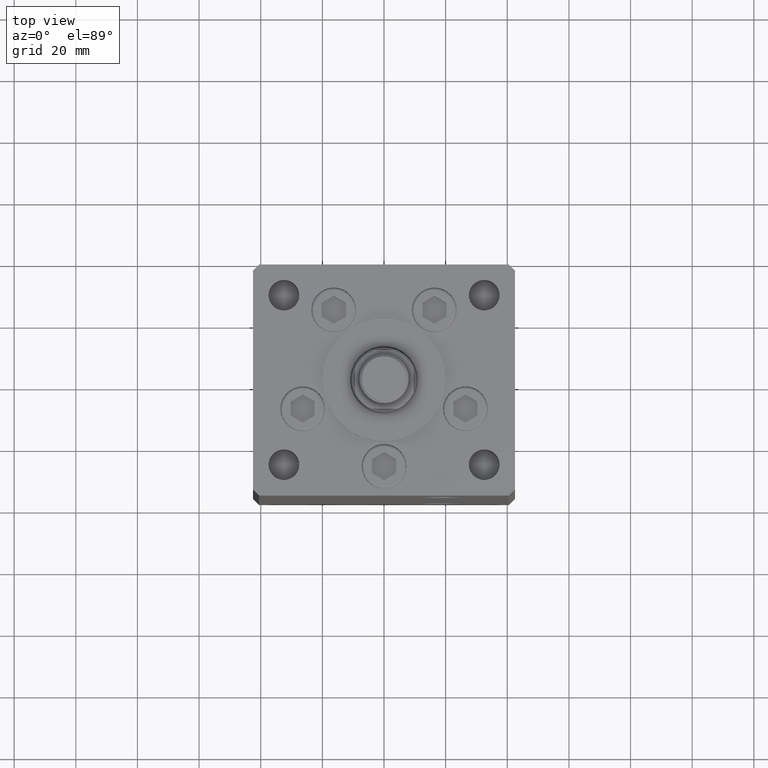
[diagram: clean part render]
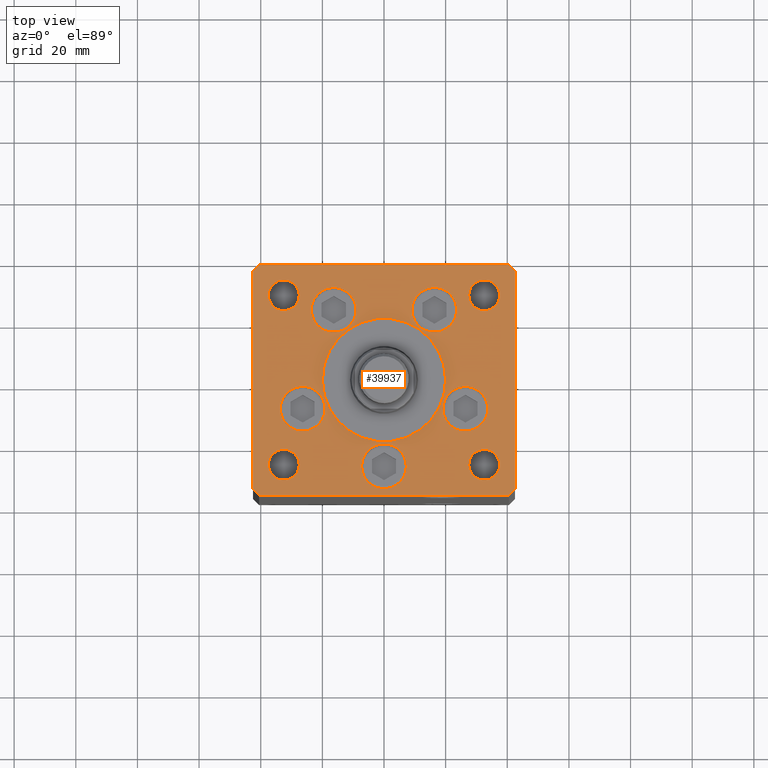
[diagram: same view with one face highlighted and labeled with its STEP entity id]
A machine part, top view. The second image highlights one B-rep face of the part: STEP entity #39937.
In plain terms, the highlighted planar face has unit normal (0, 0, 1).
Its self-contained STEP definition (entity closure, byte-faithful):
#381 = CARTESIAN_POINT ( 'NONE',  ( 37.50000000000000000, 27.49999999999999645, 0.000000000000000000 ) ) ;
#1304 = DIRECTION ( 'NONE',  ( 1.000000000000000000, 0.000000000000000000, 0.000000000000000000 ) ) ;
#1337 = ORIENTED_EDGE ( 'NONE', *, *, #44912, .F. ) ;
#1575 = VERTEX_POINT ( 'NONE', #16750 ) ;
#1976 = EDGE_CURVE ( 'NONE', #31395, #40516, #36738, .T. ) ;
#2077 = CARTESIAN_POINT ( 'NONE',  ( 26.39865316429777664, -9.333333333333330373, 0.000000000000000000 ) ) ;
#2085 = EDGE_CURVE ( 'NONE', #12392, #33959, #27474, .T. ) ;
#2093 = ORIENTED_EDGE ( 'NONE', *, *, #33495, .T. ) ;
#2217 = VERTEX_POINT ( 'NONE', #16357 ) ;
#2313 = CIRCLE ( 'NONE', #20102, 20.00000000000000000 ) ;
#2337 = CARTESIAN_POINT ( 'NONE',  ( -37.50000000000000711, 27.50000000000000711, 0.000000000000000000 ) ) ;
#2431 = DIRECTION ( 'NONE',  ( 1.000000000000000000, 0.000000000000000000, 0.000000000000000000 ) ) ;
#2440 = AXIS2_PLACEMENT_3D ( 'NONE', #50064, #18259, #37887 ) ;
#2483 = EDGE_LOOP ( 'NONE', ( #18332, #41672 ) ) ;
#2903 = EDGE_CURVE ( 'NONE', #48194, #10836, #51166, .T. ) ;
#3240 = DIRECTION ( 'NONE',  ( -0.000000000000000000, -0.000000000000000000, -1.000000000000000000 ) ) ;
#3314 = ORIENTED_EDGE ( 'NONE', *, *, #50832, .F. ) ;
#3653 = ORIENTED_EDGE ( 'NONE', *, *, #19638, .F. ) ;
#3935 = CARTESIAN_POINT ( 'NONE',  ( 42.50000000000000711, -35.49999999999992895, 0.000000000000000000 ) ) ;
#4215 = VECTOR ( 'NONE', #39763, 1000.000000000000000 ) ;
#4217 = DIRECTION ( 'NONE',  ( 0.000000000000000000, 0.000000000000000000, 1.000000000000000000 ) ) ;
#4440 = CARTESIAN_POINT ( 'NONE',  ( 16.32291334290544071, 22.74999999999999289, 0.000000000000000000 ) ) ;
#4622 = ORIENTED_EDGE ( 'NONE', *, *, #45776, .T. ) ;
#4624 = CARTESIAN_POINT ( 'NONE',  ( -33.64865316429777664, -9.333333333333328596, 0.000000000000000000 ) ) ;
#4718 = CARTESIAN_POINT ( 'NONE',  ( -16.32291334290544071, 22.74999999999999289, 0.000000000000000000 ) ) ;
#4987 = CARTESIAN_POINT ( 'NONE',  ( 32.50000000000000000, -27.50000000000000355, 0.000000000000000000 ) ) ;
#5048 = CARTESIAN_POINT ( 'NONE',  ( -32.50000000000000000, -27.50000000000000355, 0.000000000000000000 ) ) ;
#5152 = VECTOR ( 'NONE', #15227, 1000.000000000000000 ) ;
#5447 = CARTESIAN_POINT ( 'NONE',  ( 20.00000000000000000, -4.489600305612522259E-15, 0.000000000000000000 ) ) ;
#5514 = FACE_BOUND ( 'NONE', #25827, .T. ) ;
#5564 = DIRECTION ( 'NONE',  ( 1.000000000000000000, 0.000000000000000000, 0.000000000000000000 ) ) ;
#5769 = CARTESIAN_POINT ( 'NONE',  ( 0.000000000000000000, 0.000000000000000000, 0.000000000000000000 ) ) ;
#5781 = DIRECTION ( 'NONE',  ( 0.000000000000000000, 0.000000000000000000, 1.000000000000000000 ) ) ;
#5793 = VERTEX_POINT ( 'NONE', #23268 ) ;
#6393 = VECTOR ( 'NONE', #27959, 1000.000000000000000 ) ;
#6528 = DIRECTION ( 'NONE',  ( 1.000000000000000000, 0.000000000000000000, 0.000000000000000000 ) ) ;
#6548 = CARTESIAN_POINT ( 'NONE',  ( 0.000000000000000000, -6.938893903907228378E-15, 0.000000000000000000 ) ) ;
#7034 = ORIENTED_EDGE ( 'NONE', *, *, #13913, .F. ) ;
#7095 = AXIS2_PLACEMENT_3D ( 'NONE', #4440, #33094, #12677 ) ;
#7580 = CARTESIAN_POINT ( 'NONE',  ( -23.57291334290544071, 22.74999999999999289, 0.000000000000000000 ) ) ;
#7836 = EDGE_CURVE ( 'NONE', #40516, #31395, #52143, .T. ) ;
#7855 = ORIENTED_EDGE ( 'NONE', *, *, #1976, .F. ) ;
#8450 = CARTESIAN_POINT ( 'NONE',  ( -32.50000000000000000, 27.50000000000000711, 0.000000000000000000 ) ) ;
#8460 = CARTESIAN_POINT ( 'NONE',  ( 32.50000000000000000, 27.49999999999999645, 0.000000000000000000 ) ) ;
#8485 = CIRCLE ( 'NONE', #30491, 7.249999999999999112 ) ;
#8769 = DIRECTION ( 'NONE',  ( 0.000000000000000000, 0.000000000000000000, 1.000000000000000000 ) ) ;
#8934 = AXIS2_PLACEMENT_3D ( 'NONE', #31880, #3240, #15438 ) ;
#8993 = CARTESIAN_POINT ( 'NONE',  ( -42.50000000000000000, -35.50000000000004263, 0.000000000000000000 ) ) ;
#9289 = CIRCLE ( 'NONE', #38091, 7.249999999999999112 ) ;
#9947 = LINE ( 'NONE', #13672, #32569 ) ;
#9963 = VERTEX_POINT ( 'NONE', #19157 ) ;
#9976 = CARTESIAN_POINT ( 'NONE',  ( 23.57291334290544071, 22.74999999999999289, 0.000000000000000000 ) ) ;
#10006 = DIRECTION ( 'NONE',  ( 1.000000000000000000, 0.000000000000000000, 0.000000000000000000 ) ) ;
#10286 = DIRECTION ( 'NONE',  ( 0.000000000000000000, 0.000000000000000000, 1.000000000000000000 ) ) ;
#10638 = ORIENTED_EDGE ( 'NONE', *, *, #38736, .F. ) ;
#10836 = VERTEX_POINT ( 'NONE', #43552 ) ;
#11101 = VERTEX_POINT ( 'NONE', #2337 ) ;
#11159 = VERTEX_POINT ( 'NONE', #36443 ) ;
#11814 = EDGE_CURVE ( 'NONE', #20076, #44933, #33787, .T. ) ;
#12001 = CARTESIAN_POINT ( 'NONE',  ( 32.50000000000000000, 27.49999999999999645, 0.000000000000000000 ) ) ;
#12238 = DIRECTION ( 'NONE',  ( 1.000000000000000000, 0.000000000000000000, 0.000000000000000000 ) ) ;
#12344 = CARTESIAN_POINT ( 'NONE',  ( -42.50000000000000711, 35.50000000000000000, 0.000000000000000000 ) ) ;
#12392 = VERTEX_POINT ( 'NONE', #4624 ) ;
#12394 = CARTESIAN_POINT ( 'NONE',  ( -19.14865316429777664, -9.333333333333330373, 0.000000000000000000 ) ) ;
#12633 = ORIENTED_EDGE ( 'NONE', *, *, #12897, .T. ) ;
#12658 = LINE ( 'NONE', #44738, #49062 ) ;
#12663 = EDGE_LOOP ( 'NONE', ( #20349, #19562 ) ) ;
#12677 = DIRECTION ( 'NONE',  ( 1.000000000000000000, 0.000000000000000000, 0.000000000000000000 ) ) ;
#12897 = EDGE_CURVE ( 'NONE', #15858, #21236, #12658, .T. ) ;
#12951 = FACE_OUTER_BOUND ( 'NONE', #40431, .T. ) ;
#13300 = CIRCLE ( 'NONE', #20067, 7.249999999999999112 ) ;
#13672 = CARTESIAN_POINT ( 'NONE',  ( 42.50000000000000711, -35.49999999999992895, 0.000000000000000000 ) ) ;
#13879 = AXIS2_PLACEMENT_3D ( 'NONE', #8460, #4217, #20397 ) ;
#13913 = EDGE_CURVE ( 'NONE', #44933, #20076, #30452, .T. ) ;
#14021 = EDGE_CURVE ( 'NONE', #1575, #5793, #38972, .T. ) ;
#14148 = EDGE_CURVE ( 'NONE', #9963, #20753, #33038, .T. ) ;
#14240 = EDGE_LOOP ( 'NONE', ( #3314, #10638 ) ) ;
#14573 = DIRECTION ( 'NONE',  ( -1.000000000000000000, 0.000000000000000000, 0.000000000000000000 ) ) ;
#14689 = AXIS2_PLACEMENT_3D ( 'NONE', #22704, #51075, #6528 ) ;
#15050 = EDGE_CURVE ( 'NONE', #52111, #25835, #9289, .T. ) ;
#15227 = DIRECTION ( 'NONE',  ( -0.7071067811865536790, -0.7071067811865414665, 0.000000000000000000 ) ) ;
#15314 = DIRECTION ( 'NONE',  ( 0.000000000000000000, 0.000000000000000000, 1.000000000000000000 ) ) ;
#15356 = CARTESIAN_POINT ( 'NONE',  ( 7.250000000000000000, -28.00000000000000000, 0.000000000000000000 ) ) ;
#15438 = DIRECTION ( 'NONE',  ( -1.000000000000000000, 0.000000000000000000, 0.000000000000000000 ) ) ;
#15858 = VERTEX_POINT ( 'NONE', #44595 ) ;
#16083 = CARTESIAN_POINT ( 'NONE',  ( -27.50000000000000000, 27.50000000000000711, 0.000000000000000000 ) ) ;
#16357 = CARTESIAN_POINT ( 'NONE',  ( 9.072913342905442491, 22.74999999999999289, 0.000000000000000000 ) ) ;
#16673 = CARTESIAN_POINT ( 'NONE',  ( -40.50000000000000000, 37.49999999999997158, 0.000000000000000000 ) ) ;
#16750 = CARTESIAN_POINT ( 'NONE',  ( -40.50000000000000711, -37.50000000000003553, 0.000000000000000000 ) ) ;
#16975 = CARTESIAN_POINT ( 'NONE',  ( -42.50000000000000000, -35.50000000000004263, 0.000000000000000000 ) ) ;
#17090 = EDGE_CURVE ( 'NONE', #33597, #1575, #29435, .T. ) ;
#17436 = ORIENTED_EDGE ( 'NONE', *, *, #14021, .T. ) ;
#17504 = DIRECTION ( 'NONE',  ( 0.7071067811865487940, -0.7071067811865463515, 0.000000000000000000 ) ) ;
#17556 = EDGE_CURVE ( 'NONE', #11159, #40256, #18566, .T. ) ;
#17713 = FACE_BOUND ( 'NONE', #26474, .T. ) ;
#18028 = CARTESIAN_POINT ( 'NONE',  ( 0.000000000000000000, -28.00000000000000000, 0.000000000000000000 ) ) ;
#18092 = EDGE_CURVE ( 'NONE', #21236, #36258, #33744, .T. ) ;
#18259 = DIRECTION ( 'NONE',  ( 0.000000000000000000, 0.000000000000000000, 1.000000000000000000 ) ) ;
#18332 = ORIENTED_EDGE ( 'NONE', *, *, #2903, .F. ) ;
#18566 = CIRCLE ( 'NONE', #48193, 20.00000000000000000 ) ;
#18727 = DIRECTION ( 'NONE',  ( 0.000000000000000000, 0.000000000000000000, 1.000000000000000000 ) ) ;
#18979 = CIRCLE ( 'NONE', #34234, 5.000000000000004441 ) ;
#18991 = AXIS2_PLACEMENT_3D ( 'NONE', #33652, #5781, #1304 ) ;
#19081 = CARTESIAN_POINT ( 'NONE',  ( 40.50000000000000711, 37.50000000000000711, 0.000000000000000000 ) ) ;
#19157 = CARTESIAN_POINT ( 'NONE',  ( 27.50000000000000355, -27.50000000000000355, 0.000000000000000000 ) ) ;
#19235 = VERTEX_POINT ( 'NONE', #43272 ) ;
#19359 = CARTESIAN_POINT ( 'NONE',  ( -32.50000000000000000, 27.50000000000000711, 0.000000000000000000 ) ) ;
#19562 = ORIENTED_EDGE ( 'NONE', *, *, #14148, .T. ) ;
#19638 = EDGE_CURVE ( 'NONE', #2217, #20682, #8485, .T. ) ;
#19667 = DIRECTION ( 'NONE',  ( 0.000000000000000000, 0.000000000000000000, 1.000000000000000000 ) ) ;
#19720 = CARTESIAN_POINT ( 'NONE',  ( -40.50000000000000000, 37.49999999999997158, 0.000000000000000000 ) ) ;
#19772 = CIRCLE ( 'NONE', #51943, 7.250000000000000000 ) ;
#20067 = AXIS2_PLACEMENT_3D ( 'NONE', #4718, #25144, #41313 ) ;
#20076 = VERTEX_POINT ( 'NONE', #50139 ) ;
#20082 = ORIENTED_EDGE ( 'NONE', *, *, #44172, .F. ) ;
#20102 = AXIS2_PLACEMENT_3D ( 'NONE', #6548, #26442, #22723 ) ;
#20349 = ORIENTED_EDGE ( 'NONE', *, *, #39529, .T. ) ;
#20385 = DIRECTION ( 'NONE',  ( -0.000000000000000000, -0.000000000000000000, -1.000000000000000000 ) ) ;
#20397 = DIRECTION ( 'NONE',  ( 1.000000000000000000, 0.000000000000000000, 0.000000000000000000 ) ) ;
#20482 = CIRCLE ( 'NONE', #45051, 5.000000000000004441 ) ;
#20682 = VERTEX_POINT ( 'NONE', #9976 ) ;
#20692 = AXIS2_PLACEMENT_3D ( 'NONE', #2077, #10286, #46874 ) ;
#20753 = VERTEX_POINT ( 'NONE', #22431 ) ;
#20933 = ORIENTED_EDGE ( 'NONE', *, *, #7836, .F. ) ;
#21173 = DIRECTION ( 'NONE',  ( -0.000000000000000000, -0.000000000000000000, -1.000000000000000000 ) ) ;
#21236 = VERTEX_POINT ( 'NONE', #25974 ) ;
#21324 = ORIENTED_EDGE ( 'NONE', *, *, #21837, .T. ) ;
#21837 = EDGE_CURVE ( 'NONE', #36258, #24940, #27155, .T. ) ;
#21849 = ORIENTED_EDGE ( 'NONE', *, *, #11814, .F. ) ;
#21941 = CARTESIAN_POINT ( 'NONE',  ( -27.50000000000000000, -27.50000000000000355, 0.000000000000000000 ) ) ;
#21942 = FACE_BOUND ( 'NONE', #12663, .T. ) ;
#22431 = CARTESIAN_POINT ( 'NONE',  ( 37.50000000000000000, -27.50000000000000355, 0.000000000000000000 ) ) ;
#22704 = CARTESIAN_POINT ( 'NONE',  ( 26.39865316429777664, -9.333333333333330373, 0.000000000000000000 ) ) ;
#22723 = DIRECTION ( 'NONE',  ( 1.000000000000000000, 0.000000000000000000, 0.000000000000000000 ) ) ;
#23268 = CARTESIAN_POINT ( 'NONE',  ( 40.50000000000001421, -37.49999999999992184, 0.000000000000000000 ) ) ;
#23464 = CARTESIAN_POINT ( 'NONE',  ( -42.50000000000000711, 35.50000000000000000, 0.000000000000000000 ) ) ;
#23677 = DIRECTION ( 'NONE',  ( 0.000000000000000000, 0.000000000000000000, 1.000000000000000000 ) ) ;
#24134 = DIRECTION ( 'NONE',  ( 0.7071067811865474617, 0.7071067811865474617, 0.000000000000000000 ) ) ;
#24604 = EDGE_CURVE ( 'NONE', #33959, #12392, #26385, .T. ) ;
#24633 = DIRECTION ( 'NONE',  ( -1.000000000000000000, 0.000000000000000000, 0.000000000000000000 ) ) ;
#24940 = VERTEX_POINT ( 'NONE', #12344 ) ;
#25144 = DIRECTION ( 'NONE',  ( 0.000000000000000000, 0.000000000000000000, 1.000000000000000000 ) ) ;
#25754 = ORIENTED_EDGE ( 'NONE', *, *, #18092, .T. ) ;
#25755 = CIRCLE ( 'NONE', #7095, 7.249999999999999112 ) ;
#25827 = EDGE_LOOP ( 'NONE', ( #30337, #4622 ) ) ;
#25835 = VERTEX_POINT ( 'NONE', #27814 ) ;
#25918 = AXIS2_PLACEMENT_3D ( 'NONE', #12001, #23677, #27396 ) ;
#25974 = CARTESIAN_POINT ( 'NONE',  ( 40.50000000000000711, 37.50000000000000711, 0.000000000000000000 ) ) ;
#26385 = CIRCLE ( 'NONE', #51824, 7.249999999999999112 ) ;
#26442 = DIRECTION ( 'NONE',  ( 0.000000000000000000, 0.000000000000000000, 1.000000000000000000 ) ) ;
#26474 = EDGE_LOOP ( 'NONE', ( #20933, #7855 ) ) ;
#26653 = CIRCLE ( 'NONE', #34301, 7.250000000000000000 ) ;
#27155 = LINE ( 'NONE', #19720, #5152 ) ;
#27396 = DIRECTION ( 'NONE',  ( 1.000000000000000000, 0.000000000000000000, 0.000000000000000000 ) ) ;
#27474 = CIRCLE ( 'NONE', #18991, 7.249999999999999112 ) ;
#27814 = CARTESIAN_POINT ( 'NONE',  ( -9.072913342905442491, 22.74999999999999289, 0.000000000000000000 ) ) ;
#27959 = DIRECTION ( 'NONE',  ( 9.773090005503134168E-17, -1.000000000000000000, 0.000000000000000000 ) ) ;
#28785 = AXIS2_PLACEMENT_3D ( 'NONE', #5048, #8769, #12238 ) ;
#29435 = LINE ( 'NONE', #16975, #51563 ) ;
#29903 = FACE_BOUND ( 'NONE', #2483, .T. ) ;
#30172 = FACE_BOUND ( 'NONE', #31773, .T. ) ;
#30337 = ORIENTED_EDGE ( 'NONE', *, *, #31344, .T. ) ;
#30452 = CIRCLE ( 'NONE', #28785, 5.000000000000000888 ) ;
#30491 = AXIS2_PLACEMENT_3D ( 'NONE', #36581, #41606, #41094 ) ;
#30586 = ORIENTED_EDGE ( 'NONE', *, *, #51891, .F. ) ;
#31321 = ORIENTED_EDGE ( 'NONE', *, *, #17556, .F. ) ;
#31343 = CARTESIAN_POINT ( 'NONE',  ( 0.000000000000000000, -28.00000000000000000, 0.000000000000000000 ) ) ;
#31344 = EDGE_CURVE ( 'NONE', #40126, #11101, #18979, .T. ) ;
#31395 = VERTEX_POINT ( 'NONE', #51950 ) ;
#31548 = CARTESIAN_POINT ( 'NONE',  ( -40.50000000000000711, -37.50000000000003553, 0.000000000000000000 ) ) ;
#31773 = EDGE_LOOP ( 'NONE', ( #30586, #3653 ) ) ;
#31840 = CARTESIAN_POINT ( 'NONE',  ( 40.50000000000001421, -37.49999999999992184, 0.000000000000000000 ) ) ;
#31880 = CARTESIAN_POINT ( 'NONE',  ( 32.50000000000000000, -27.50000000000000355, 0.000000000000000000 ) ) ;
#32365 = ORIENTED_EDGE ( 'NONE', *, *, #17090, .T. ) ;
#32569 = VECTOR ( 'NONE', #33583, 1000.000000000000000 ) ;
#33038 = CIRCLE ( 'NONE', #41472, 4.999999999999997335 ) ;
#33094 = DIRECTION ( 'NONE',  ( 0.000000000000000000, 0.000000000000000000, 1.000000000000000000 ) ) ;
#33495 = EDGE_CURVE ( 'NONE', #5793, #44200, #36324, .T. ) ;
#33583 = DIRECTION ( 'NONE',  ( 9.773090005503145261E-17, 1.000000000000000000, 0.000000000000000000 ) ) ;
#33597 = VERTEX_POINT ( 'NONE', #8993 ) ;
#33652 = CARTESIAN_POINT ( 'NONE',  ( -26.39865316429777664, -9.333333333333330373, 0.000000000000000000 ) ) ;
#33744 = LINE ( 'NONE', #19081, #34690 ) ;
#33787 = CIRCLE ( 'NONE', #2440, 5.000000000000000888 ) ;
#33889 = FACE_BOUND ( 'NONE', #14240, .T. ) ;
#33959 = VERTEX_POINT ( 'NONE', #12394 ) ;
#34145 = PLANE ( 'NONE',  #42807 ) ;
#34234 = AXIS2_PLACEMENT_3D ( 'NONE', #19359, #35278, #14573 ) ;
#34301 = AXIS2_PLACEMENT_3D ( 'NONE', #31343, #51220, #2431 ) ;
#34690 = VECTOR ( 'NONE', #41956, 1000.000000000000000 ) ;
#35278 = DIRECTION ( 'NONE',  ( -0.000000000000000000, -0.000000000000000000, -1.000000000000000000 ) ) ;
#35471 = CARTESIAN_POINT ( 'NONE',  ( -16.32291334290544071, 22.74999999999999289, 0.000000000000000000 ) ) ;
#35848 = CARTESIAN_POINT ( 'NONE',  ( -26.39865316429777664, -9.333333333333330373, 0.000000000000000000 ) ) ;
#36258 = VERTEX_POINT ( 'NONE', #16673 ) ;
#36324 = LINE ( 'NONE', #31840, #39229 ) ;
#36443 = CARTESIAN_POINT ( 'NONE',  ( -20.00000000000000000, -6.938893903907228378E-15, 0.000000000000000000 ) ) ;
#36581 = CARTESIAN_POINT ( 'NONE',  ( 16.32291334290544071, 22.74999999999999289, 0.000000000000000000 ) ) ;
#36738 = CIRCLE ( 'NONE', #13879, 4.999999999999997335 ) ;
#37361 = EDGE_CURVE ( 'NONE', #44200, #15858, #9947, .T. ) ;
#37606 = DIRECTION ( 'NONE',  ( -0.000000000000000000, 0.000000000000000000, 1.000000000000000000 ) ) ;
#37887 = DIRECTION ( 'NONE',  ( 1.000000000000000000, 0.000000000000000000, 0.000000000000000000 ) ) ;
#38091 = AXIS2_PLACEMENT_3D ( 'NONE', #35471, #15314, #38911 ) ;
#38668 = ORIENTED_EDGE ( 'NONE', *, *, #40424, .T. ) ;
#38736 = EDGE_CURVE ( 'NONE', #19235, #51703, #26653, .T. ) ;
#38911 = DIRECTION ( 'NONE',  ( 1.000000000000000000, 0.000000000000000000, 0.000000000000000000 ) ) ;
#38972 = LINE ( 'NONE', #31548, #4215 ) ;
#39216 = EDGE_LOOP ( 'NONE', ( #31321, #1337 ) ) ;
#39229 = VECTOR ( 'NONE', #24134, 1000.000000000000114 ) ;
#39484 = EDGE_LOOP ( 'NONE', ( #20082, #51729 ) ) ;
#39529 = EDGE_CURVE ( 'NONE', #20753, #9963, #41944, .T. ) ;
#39763 = DIRECTION ( 'NONE',  ( 1.000000000000000000, 1.370645709413773283E-15, 0.000000000000000000 ) ) ;
#39937 = ADVANCED_FACE ( 'NONE', ( #49540, #41325, #30172, #29903, #33889, #46334, #5514, #17713, #41583, #12951, #21942 ), #34145, .T. ) ;
#40126 = VERTEX_POINT ( 'NONE', #16083 ) ;
#40256 = VERTEX_POINT ( 'NONE', #5447 ) ;
#40424 = EDGE_CURVE ( 'NONE', #24940, #33597, #52085, .T. ) ;
#40431 = EDGE_LOOP ( 'NONE', ( #32365, #17436, #2093, #43706, #12633, #25754, #21324, #38668 ) ) ;
#40516 = VERTEX_POINT ( 'NONE', #381 ) ;
#41094 = DIRECTION ( 'NONE',  ( 1.000000000000000000, 0.000000000000000000, 0.000000000000000000 ) ) ;
#41313 = DIRECTION ( 'NONE',  ( 1.000000000000000000, 0.000000000000000000, 0.000000000000000000 ) ) ;
#41325 = FACE_BOUND ( 'NONE', #39484, .T. ) ;
#41472 = AXIS2_PLACEMENT_3D ( 'NONE', #4987, #20385, #45303 ) ;
#41583 = FACE_BOUND ( 'NONE', #43615, .T. ) ;
#41606 = DIRECTION ( 'NONE',  ( 0.000000000000000000, 0.000000000000000000, 1.000000000000000000 ) ) ;
#41672 = ORIENTED_EDGE ( 'NONE', *, *, #50050, .F. ) ;
#41944 = CIRCLE ( 'NONE', #8934, 4.999999999999997335 ) ;
#41956 = DIRECTION ( 'NONE',  ( -1.000000000000000000, -4.283267841918041508E-16, 0.000000000000000000 ) ) ;
#42334 = CARTESIAN_POINT ( 'NONE',  ( 0.000000000000000000, -6.938893903907228378E-15, 0.000000000000000000 ) ) ;
#42807 = AXIS2_PLACEMENT_3D ( 'NONE', #5769, #37606, #10006 ) ;
#42859 = DIRECTION ( 'NONE',  ( 1.000000000000000000, 0.000000000000000000, 0.000000000000000000 ) ) ;
#42928 = ORIENTED_EDGE ( 'NONE', *, *, #24604, .F. ) ;
#43272 = CARTESIAN_POINT ( 'NONE',  ( -7.250000000000000000, -28.00000000000000000, 0.000000000000000000 ) ) ;
#43474 = CIRCLE ( 'NONE', #14689, 7.249999999999999112 ) ;
#43552 = CARTESIAN_POINT ( 'NONE',  ( 19.14865316429777664, -9.333333333333328596, 0.000000000000000000 ) ) ;
#43615 = EDGE_LOOP ( 'NONE', ( #7034, #21849 ) ) ;
#43706 = ORIENTED_EDGE ( 'NONE', *, *, #37361, .T. ) ;
#44059 = DIRECTION ( 'NONE',  ( 1.000000000000000000, 0.000000000000000000, 0.000000000000000000 ) ) ;
#44172 = EDGE_CURVE ( 'NONE', #25835, #52111, #13300, .T. ) ;
#44200 = VERTEX_POINT ( 'NONE', #3935 ) ;
#44595 = CARTESIAN_POINT ( 'NONE',  ( 42.50000000000001421, 35.50000000000002132, 0.000000000000000000 ) ) ;
#44738 = CARTESIAN_POINT ( 'NONE',  ( 42.50000000000001421, 35.50000000000002132, 0.000000000000000000 ) ) ;
#44809 = ORIENTED_EDGE ( 'NONE', *, *, #2085, .F. ) ;
#44912 = EDGE_CURVE ( 'NONE', #40256, #11159, #2313, .T. ) ;
#44918 = EDGE_LOOP ( 'NONE', ( #42928, #44809 ) ) ;
#44933 = VERTEX_POINT ( 'NONE', #21941 ) ;
#45051 = AXIS2_PLACEMENT_3D ( 'NONE', #8450, #21173, #24633 ) ;
#45303 = DIRECTION ( 'NONE',  ( -1.000000000000000000, 0.000000000000000000, 0.000000000000000000 ) ) ;
#45776 = EDGE_CURVE ( 'NONE', #11101, #40126, #20482, .T. ) ;
#46334 = FACE_BOUND ( 'NONE', #44918, .T. ) ;
#46874 = DIRECTION ( 'NONE',  ( 1.000000000000000000, 0.000000000000000000, 0.000000000000000000 ) ) ;
#48188 = DIRECTION ( 'NONE',  ( -0.7071067811865524577, 0.7071067811865426878, 0.000000000000000000 ) ) ;
#48193 = AXIS2_PLACEMENT_3D ( 'NONE', #42334, #18727, #42859 ) ;
#48194 = VERTEX_POINT ( 'NONE', #52104 ) ;
#49062 = VECTOR ( 'NONE', #48188, 1000.000000000000000 ) ;
#49540 = FACE_BOUND ( 'NONE', #39216, .T. ) ;
#50050 = EDGE_CURVE ( 'NONE', #10836, #48194, #43474, .T. ) ;
#50064 = CARTESIAN_POINT ( 'NONE',  ( -32.50000000000000000, -27.50000000000000355, 0.000000000000000000 ) ) ;
#50139 = CARTESIAN_POINT ( 'NONE',  ( -37.50000000000000711, -27.50000000000000355, 0.000000000000000000 ) ) ;
#50832 = EDGE_CURVE ( 'NONE', #51703, #19235, #19772, .T. ) ;
#50891 = DIRECTION ( 'NONE',  ( 0.000000000000000000, 0.000000000000000000, 1.000000000000000000 ) ) ;
#51075 = DIRECTION ( 'NONE',  ( 0.000000000000000000, 0.000000000000000000, 1.000000000000000000 ) ) ;
#51166 = CIRCLE ( 'NONE', #20692, 7.249999999999999112 ) ;
#51220 = DIRECTION ( 'NONE',  ( 0.000000000000000000, 0.000000000000000000, 1.000000000000000000 ) ) ;
#51563 = VECTOR ( 'NONE', #17504, 1000.000000000000000 ) ;
#51703 = VERTEX_POINT ( 'NONE', #15356 ) ;
#51729 = ORIENTED_EDGE ( 'NONE', *, *, #15050, .F. ) ;
#51824 = AXIS2_PLACEMENT_3D ( 'NONE', #35848, #19667, #44059 ) ;
#51891 = EDGE_CURVE ( 'NONE', #20682, #2217, #25755, .T. ) ;
#51943 = AXIS2_PLACEMENT_3D ( 'NONE', #18028, #50891, #5564 ) ;
#51950 = CARTESIAN_POINT ( 'NONE',  ( 27.50000000000000355, 27.49999999999999645, 0.000000000000000000 ) ) ;
#52085 = LINE ( 'NONE', #23464, #6393 ) ;
#52104 = CARTESIAN_POINT ( 'NONE',  ( 33.64865316429777664, -9.333333333333330373, 0.000000000000000000 ) ) ;
#52111 = VERTEX_POINT ( 'NONE', #7580 ) ;
#52143 = CIRCLE ( 'NONE', #25918, 4.999999999999997335 ) ;